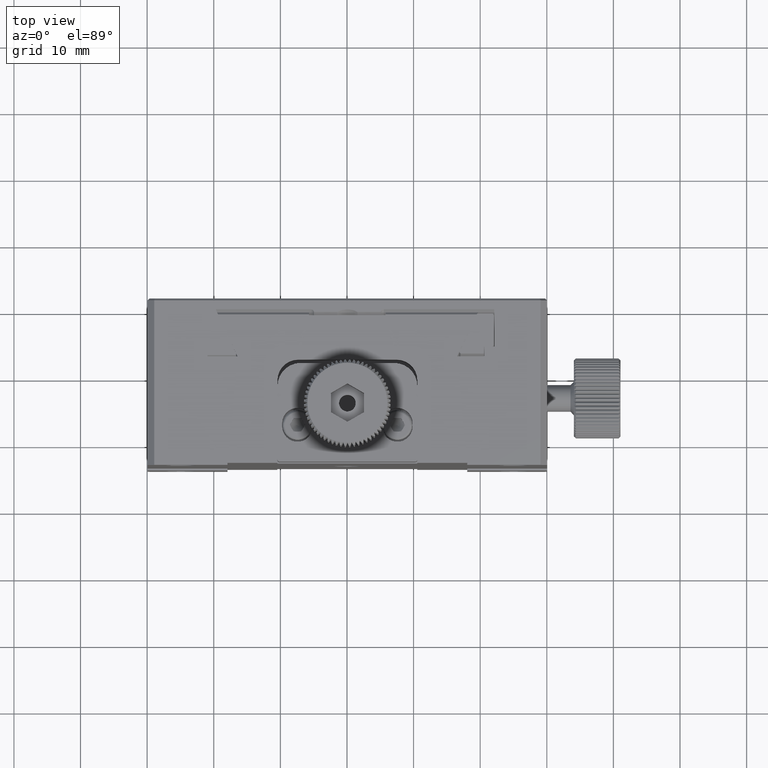
[diagram: clean part render]
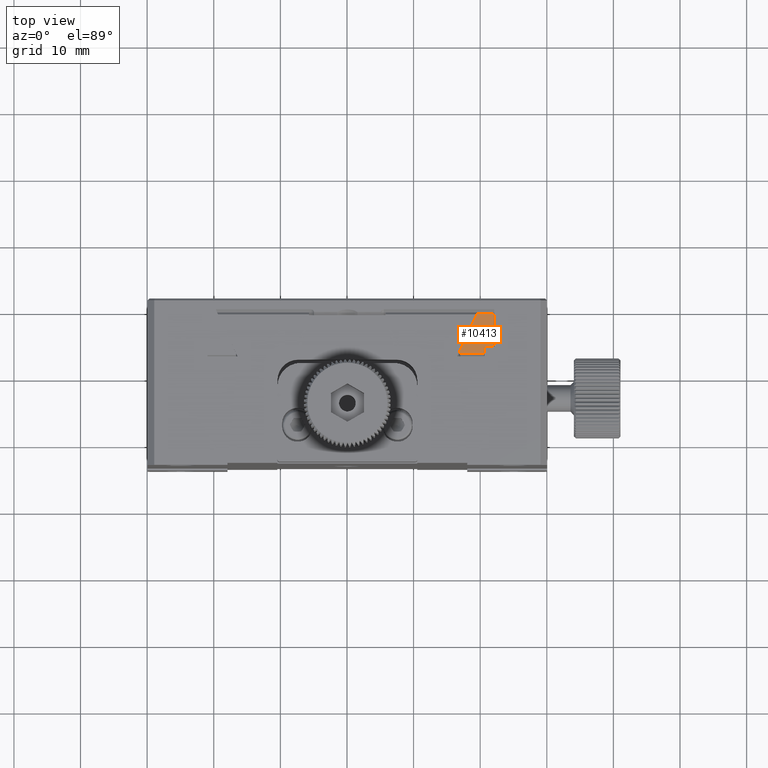
[diagram: same view with one face highlighted and labeled with its STEP entity id]
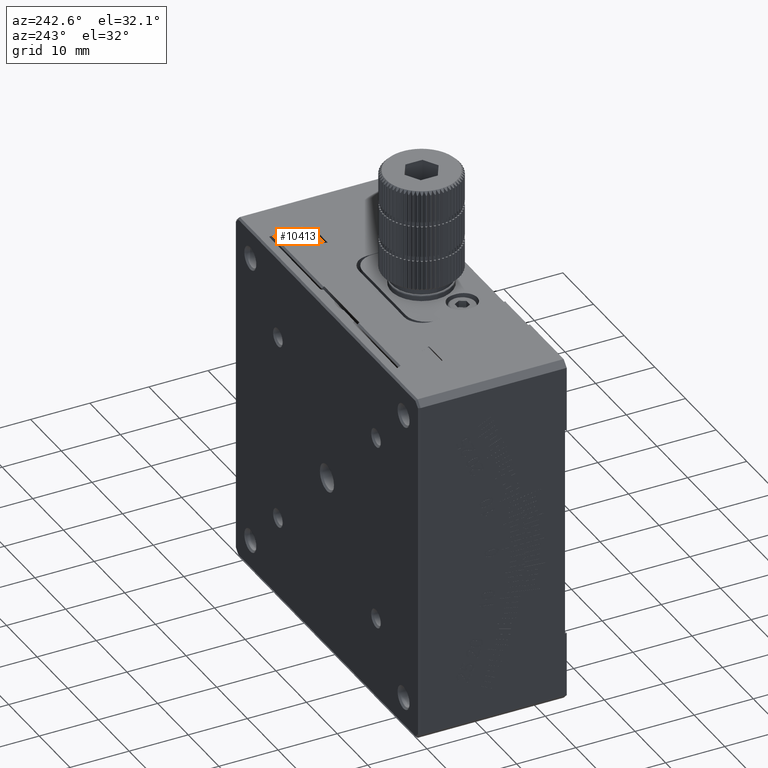
[diagram: same view with one face highlighted and labeled with its STEP entity id]
A machine part, top view. The second image highlights one B-rep face of the part: STEP entity #10413.
A second angle (auxiliary view) of the same face is appended — the face is thin or edge-on in the first view.
In plain terms, the highlighted planar face has unit normal (0, -0, 1).
Its self-contained STEP definition (entity closure, byte-faithful):
#53 = ORIENTED_EDGE ( 'NONE', *, *, #25237, .T. ) ;
#613 = ORIENTED_EDGE ( 'NONE', *, *, #10379, .T. ) ;
#687 = EDGE_CURVE ( 'NONE', #18199, #2702, #34655, .T. ) ;
#1286 = EDGE_CURVE ( 'NONE', #23703, #1905, #65391, .T. ) ;
#1905 = VERTEX_POINT ( 'NONE', #4146 ) ;
#1958 = B_SPLINE_CURVE_WITH_KNOTS ( 'NONE', 3,
 ( #14054, #35027, #39185, #29856, #19541, #66731, #54707, #65700 ),
 .UNSPECIFIED., .F., .F.,
 ( 4, 2, 2, 4 ),
 ( 0.000000000000000000, 0.0001181838828971978867, 0.0002363677657943957734, 0.0004727355315887566897 ),
 .UNSPECIFIED. ) ;
#2702 = VERTEX_POINT ( 'NONE', #66798 ) ;
#4146 = CARTESIAN_POINT ( 'NONE',  ( 66.93342937612331411, 53.43526198389551496, 80.22904667704469261 ) ) ;
#4406 = CARTESIAN_POINT ( 'NONE',  ( 70.56022429536638185, 54.10814670791570791, 80.22904667704469261 ) ) ;
#5978 = CARTESIAN_POINT ( 'NONE',  ( 69.53150558747658749, 59.05893240114149023, 80.22904667704469261 ) ) ;
#8023 = CARTESIAN_POINT ( 'NONE',  ( 72.06022429536641027, 58.80255524890676355, 80.22904667704469261 ) ) ;
#9534 = CARTESIAN_POINT ( 'NONE',  ( 71.86022429536636480, 54.10814670791571501, 80.22904667704469261 ) ) ;
#10379 = EDGE_CURVE ( 'NONE', #40744, #63216, #67934, .T. ) ;
#10413 = ADVANCED_FACE ( 'NONE', ( #10418 ), #63117, .T. ) ;
#10418 = FACE_OUTER_BOUND ( 'NONE', #44286, .T. ) ;
#12979 = DIRECTION ( 'NONE',  ( -3.942269589734075124E-15, -1.000000000000000000, -0.000000000000000000 ) ) ;
#12997 = ORIENTED_EDGE ( 'NONE', *, *, #1286, .T. ) ;
#14054 = CARTESIAN_POINT ( 'NONE',  ( 67.10663445688015827, 53.06969783216619874, 80.22904667704469261 ) ) ;
#15195 = CARTESIAN_POINT ( 'NONE',  ( 66.76022429536639891, 59.05893240114148313, 80.22904667704469261 ) ) ;
#16875 = ORIENTED_EDGE ( 'NONE', *, *, #19632, .T. ) ;
#18199 = VERTEX_POINT ( 'NONE', #33837 ) ;
#18505 = CARTESIAN_POINT ( 'NONE',  ( 71.99359708466310792, 54.27182979114908079, 80.22904667704467840 ) ) ;
#19088 = EDGE_CURVE ( 'NONE', #18199, #67287, #46345, .T. ) ;
#19541 = CARTESIAN_POINT ( 'NONE',  ( 66.94270561379335049, 53.16779688431457629, 80.22904667704470683 ) ) ;
#19632 = EDGE_CURVE ( 'NONE', #67335, #59414, #56162, .T. ) ;
#20056 = CARTESIAN_POINT ( 'NONE',  ( 71.86022429536640743, 59.05893240114149023, 80.22904667704469261 ) ) ;
#20101 = ORIENTED_EDGE ( 'NONE', *, *, #54636, .F. ) ;
#21782 = CARTESIAN_POINT ( 'NONE',  ( 66.93342937612331411, 53.43526198389551496, 80.22904667704469261 ) ) ;
#22973 = CARTESIAN_POINT ( 'NONE',  ( 72.06022429536636764, 54.35371950978356637, 80.22904667704469261 ) ) ;
#23677 = ORIENTED_EDGE ( 'NONE', *, *, #55941, .F. ) ;
#23703 = VERTEX_POINT ( 'NONE', #38283 ) ;
#23926 = LINE ( 'NONE', #65281, #48798 ) ;
#24880 = AXIS2_PLACEMENT_3D ( 'NONE', #36913, #52463, #43098 ) ;
#25237 = EDGE_CURVE ( 'NONE', #67287, #23703, #46906, .T. ) ;
#26563 = CARTESIAN_POINT ( 'NONE',  ( 66.76022429536639891, 53.06969783216621295, 80.22904667704469261 ) ) ;
#28139 = CARTESIAN_POINT ( 'NONE',  ( 71.86022429536636480, 54.10814670791571501, 80.22904667704469261 ) ) ;
#29048 = VECTOR ( 'NONE', #66831, 1000.000000000000000 ) ;
#29856 = CARTESIAN_POINT ( 'NONE',  ( 66.96582686211709756, 53.13438979509030702, 80.22904667704472104 ) ) ;
#32772 = CARTESIAN_POINT ( 'NONE',  ( 68.68442059559409074, 57.17562532556110000, 80.22904667704469261 ) ) ;
#33837 = CARTESIAN_POINT ( 'NONE',  ( 72.06022429536641027, 58.80255524890676355, 80.22904667704469261 ) ) ;
#34443 = VECTOR ( 'NONE', #36184, 1000.000000000000000 ) ;
#34655 = LINE ( 'NONE', #38811, #64955 ) ;
#35027 = CARTESIAN_POINT ( 'NONE',  ( 67.06661416059712622, 53.06969783216619163, 80.22904667704470683 ) ) ;
#36184 = DIRECTION ( 'NONE',  ( -1.000000000000000000, -0.000000000000000000, 1.597918576475365925E-15 ) ) ;
#36913 = CARTESIAN_POINT ( 'NONE',  ( 66.76022429536639891, 59.05893240114150444, 80.22904667704469261 ) ) ;
#38283 = CARTESIAN_POINT ( 'NONE',  ( 69.53150558747658749, 59.05893240114149023, 80.22904667704469261 ) ) ;
#38811 = CARTESIAN_POINT ( 'NONE',  ( 72.06022429536655238, 96.33657315266972887, 80.22904667704469261 ) ) ;
#39185 = CARTESIAN_POINT ( 'NONE',  ( 67.02822356932446723, 53.08462610334628096, 80.22904667704470683 ) ) ;
#40744 = VERTEX_POINT ( 'NONE', #47804 ) ;
#43098 = DIRECTION ( 'NONE',  ( 1.000000000000000000, 0.000000000000000000, -1.597918576475365925E-15 ) ) ;
#44268 = DIRECTION ( 'NONE',  ( -3.942269589734075124E-15, -1.000000000000000000, -0.000000000000000000 ) ) ;
#44286 = EDGE_LOOP ( 'NONE', ( #613, #23677, #16875, #20101, #64832, #59119, #53, #12997, #65287 ) ) ;
#44561 = CARTESIAN_POINT ( 'NONE',  ( 70.56022429536638185, 53.06969783216619163, 80.22904667704469261 ) ) ;
#46345 = B_SPLINE_CURVE_WITH_KNOTS ( 'NONE', 3,
 ( #8023, #55557, #57261, #20056 ),
 .UNSPECIFIED., .F., .F.,
 ( 4, 4 ),
 ( 1.962615573354718958E-17, 0.0003251603361235687133 ),
 .UNSPECIFIED. ) ;
#46906 = LINE ( 'NONE', #15195, #34443 ) ;
#47804 = CARTESIAN_POINT ( 'NONE',  ( 67.10663445688015827, 53.06969783216619874, 80.22904667704469261 ) ) ;
#48000 = CARTESIAN_POINT ( 'NONE',  ( 67.81661376791633700, 55.30189151879639553, 80.22904667704469261 ) ) ;
#48798 = VECTOR ( 'NONE', #44268, 1000.000000000000000 ) ;
#49135 = VECTOR ( 'NONE', #63776, 1000.000000000000000 ) ;
#51276 = CARTESIAN_POINT ( 'NONE',  ( 71.86022429536640743, 59.05893240114149023, 80.22904667704469261 ) ) ;
#52463 = DIRECTION ( 'NONE',  ( 1.597918576475365925E-15, -1.084202172485389962E-19, 1.000000000000000000 ) ) ;
#54636 = EDGE_CURVE ( 'NONE', #2702, #59414, #59957, .T. ) ;
#54707 = CARTESIAN_POINT ( 'NONE',  ( 66.89932958842996413, 53.36319133654977520, 80.22904667704469261 ) ) ;
#55557 = CARTESIAN_POINT ( 'NONE',  ( 71.99350218962430858, 58.88797102264911132, 80.22904667704467840 ) ) ;
#55941 = EDGE_CURVE ( 'NONE', #67335, #63216, #23926, .T. ) ;
#56162 = LINE ( 'NONE', #66485, #29048 ) ;
#57261 = CARTESIAN_POINT ( 'NONE',  ( 71.92683520641224959, 58.97342988463871194, 80.22904667704467840 ) ) ;
#59119 = ORIENTED_EDGE ( 'NONE', *, *, #19088, .T. ) ;
#59414 = VERTEX_POINT ( 'NONE', #9534 ) ;
#59957 = B_SPLINE_CURVE_WITH_KNOTS ( 'NONE', 3,
 ( #22973, #18505, #66024, #28139 ),
 .UNSPECIFIED., .F., .F.,
 ( 4, 4 ),
 ( 1.962615573354718958E-17, 0.0003167112265412006856 ),
 .UNSPECIFIED. ) ;
#63117 = PLANE ( 'NONE',  #24880 ) ;
#63216 = VERTEX_POINT ( 'NONE', #44561 ) ;
#63776 = DIRECTION ( 'NONE',  ( 1.000000000000000000, 0.000000000000000000, -1.597918576475365925E-15 ) ) ;
#64832 = ORIENTED_EDGE ( 'NONE', *, *, #687, .F. ) ;
#64955 = VECTOR ( 'NONE', #12979, 1000.000000000000000 ) ;
#65281 = CARTESIAN_POINT ( 'NONE',  ( 70.56022429536655238, 96.33657315266972887, 80.22904667704467840 ) ) ;
#65287 = ORIENTED_EDGE ( 'NONE', *, *, #66141, .F. ) ;
#65391 = B_SPLINE_CURVE_WITH_KNOTS ( 'NONE', 3,
 ( #5978, #32772, #48000, #21782 ),
 .UNSPECIFIED., .F., .F.,
 ( 4, 4 ),
 ( 0.000000000000000000, 0.006194809840649449263 ),
 .UNSPECIFIED. ) ;
#65700 = CARTESIAN_POINT ( 'NONE',  ( 66.93342937612331411, 53.43526198389551496, 80.22904667704469261 ) ) ;
#66024 = CARTESIAN_POINT ( 'NONE',  ( 71.92693021951365040, 54.18997232070167058, 80.22904667704467840 ) ) ;
#66141 = EDGE_CURVE ( 'NONE', #40744, #1905, #1958, .T. ) ;
#66485 = CARTESIAN_POINT ( 'NONE',  ( 66.76022429536639891, 54.10814670791571501, 80.22904667704469261 ) ) ;
#66731 = CARTESIAN_POINT ( 'NONE',  ( 66.89764465878334931, 53.27777049966343270, 80.22904667704467840 ) ) ;
#66798 = CARTESIAN_POINT ( 'NONE',  ( 72.06022429536636764, 54.35371950978356637, 80.22904667704469261 ) ) ;
#66831 = DIRECTION ( 'NONE',  ( 1.000000000000000000, 0.000000000000000000, -1.597918576475365925E-15 ) ) ;
#67287 = VERTEX_POINT ( 'NONE', #51276 ) ;
#67335 = VERTEX_POINT ( 'NONE', #4406 ) ;
#67934 = LINE ( 'NONE', #26563, #49135 ) ;